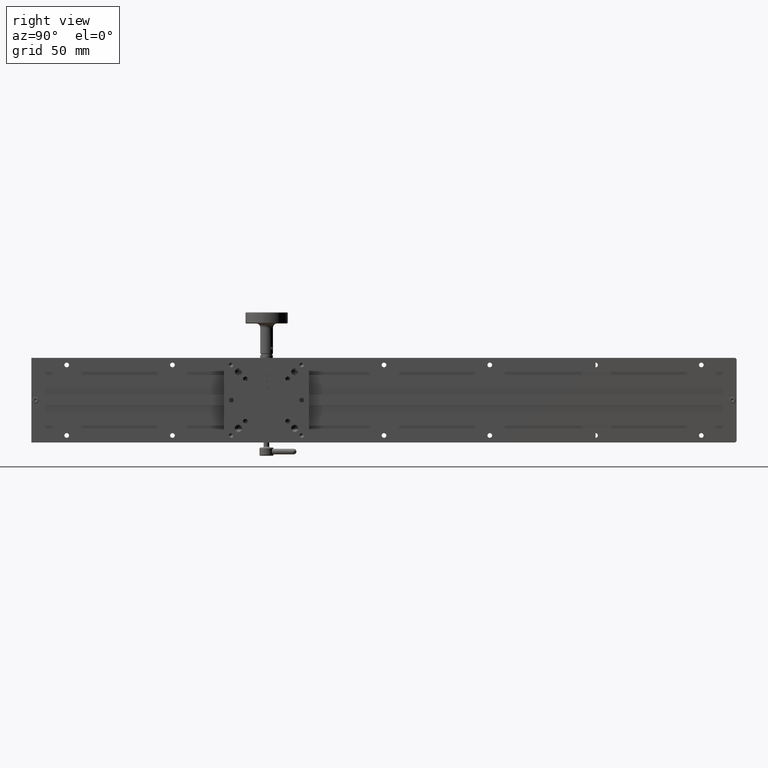
[diagram: clean part render]
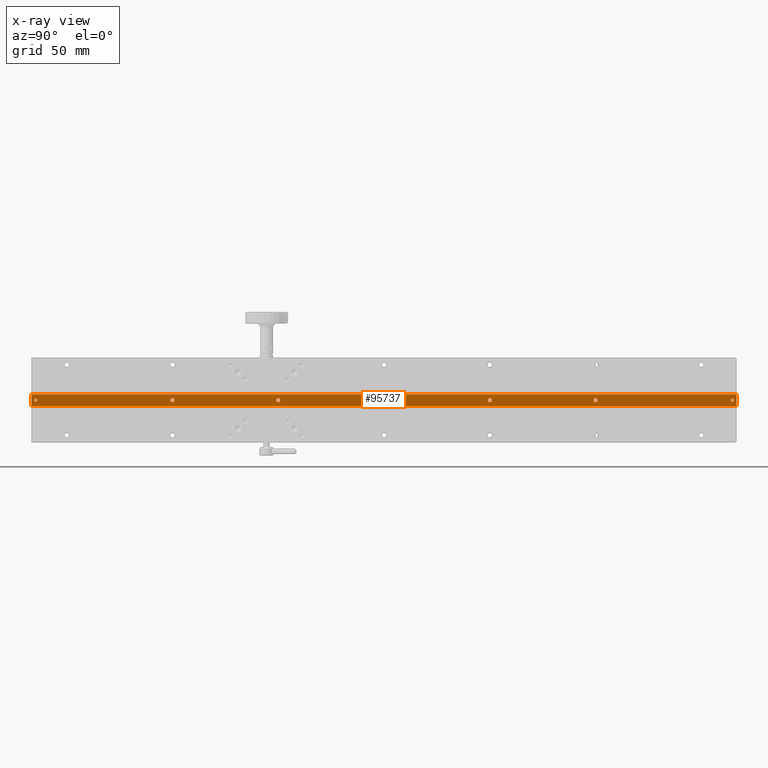
[diagram: x-ray — body ghosted, one internal face saturated and labeled with its STEP entity id]
A machine part, right view, then the same camera in x-ray: the body is ghosted and one INTERNAL B-rep face — a face not visible from any outside direction — is saturated and labeled: STEP entity #95737.
In plain terms, the highlighted planar face has unit normal (-1, 0, 0).
Its self-contained STEP definition (entity closure, byte-faithful):
#155 = AXIS2_PLACEMENT_3D ( 'NONE', #59455, #100485, #24570 ) ;
#354 = CARTESIAN_POINT ( 'NONE',  ( 41.90000000000107860, 504.9999999999997726, -29.99999999999732125 ) ) ;
#1534 = VERTEX_POINT ( 'NONE', #37464 ) ;
#3738 = FACE_BOUND ( 'NONE', #44040, .T. ) ;
#5804 = DIRECTION ( 'NONE',  ( -1.000000000000000000, 1.443289932012392100E-15, 4.635250982436261413E-14 ) ) ;
#5843 = VECTOR ( 'NONE', #43988, 1000.000000000000000 ) ;
#6802 = EDGE_CURVE ( 'NONE', #64511, #34632, #65195, .T. ) ;
#9173 = VERTEX_POINT ( 'NONE', #53796 ) ;
#9233 = CIRCLE ( 'NONE', #71164, 1.449999999999996403 ) ;
#10036 = CARTESIAN_POINT ( 'NONE',  ( 41.90000000000035385, 10.99999999999977085, -30.00000000000036948 ) ) ;
#10386 = CIRCLE ( 'NONE', #42255, 1.449999999999999956 ) ;
#11662 = LINE ( 'NONE', #63726, #20053 ) ;
#12152 = VECTOR ( 'NONE', #107710, 1000.000000000000000 ) ;
#12189 = CARTESIAN_POINT ( 'NONE',  ( 41.90000000000035385, 12.02499999999976055, -30.00000000000035172 ) ) ;
#12278 = DIRECTION ( 'NONE',  ( 1.000000000000000000, -1.443289932012660312E-15, -2.877341228894477022E-15 ) ) ;
#12738 = CARTESIAN_POINT ( 'NONE',  ( 41.90000000000016200, 7.999999999999795719, -34.04999999999995453 ) ) ;
#12833 = EDGE_LOOP ( 'NONE', ( #62561, #108349 ) ) ;
#14101 = FACE_OUTER_BOUND ( 'NONE', #20004, .T. ) ;
#14647 = FACE_BOUND ( 'NONE', #12833, .T. ) ;
#14709 = CARTESIAN_POINT ( 'NONE',  ( 41.90000000000087965, 507.9999999999997726, -34.04999999999687788 ) ) ;
#15060 = ORIENTED_EDGE ( 'NONE', *, *, #50604, .F. ) ;
#15375 = VERTEX_POINT ( 'NONE', #98441 ) ;
#16184 = AXIS2_PLACEMENT_3D ( 'NONE', #33757, #35389, #83637 ) ;
#17231 = CARTESIAN_POINT ( 'NONE',  ( 41.90000000000071623, 257.9999999999997726, -29.99999999999841549 ) ) ;
#18506 = CARTESIAN_POINT ( 'NONE',  ( 41.90000000000087965, 507.9999999999997726, -34.04999999999687788 ) ) ;
#18827 = EDGE_CURVE ( 'NONE', #98763, #43216, #44242, .T. ) ;
#20004 = EDGE_LOOP ( 'NONE', ( #70634, #22172, #15060, #33777 ) ) ;
#20053 = VECTOR ( 'NONE', #97526, 1000.000000000000000 ) ;
#20371 = DIRECTION ( 'NONE',  ( 1.000000000000000000, -1.443289932012660312E-15, -2.877341228894477022E-15 ) ) ;
#20869 = CIRCLE ( 'NONE', #47386, 1.449999999999999956 ) ;
#21125 = CARTESIAN_POINT ( 'NONE',  ( 41.90000000000035385, 9.974999999999781153, -30.00000000000037659 ) ) ;
#22172 = ORIENTED_EDGE ( 'NONE', *, *, #109075, .F. ) ;
#22672 = CARTESIAN_POINT ( 'NONE',  ( 41.90000000000081570, 331.5499999999997840, -29.99999999999795364 ) ) ;
#23143 = AXIS2_PLACEMENT_3D ( 'NONE', #82244, #5804, #96276 ) ;
#24344 = DIRECTION ( 'NONE',  ( 4.785444071660157589E-14, 0.000000000000000000, 1.000000000000000000 ) ) ;
#24570 = DIRECTION ( 'NONE',  ( 4.785444071660169580E-14, 0.000000000000000000, 1.000000000000000000 ) ) ;
#24735 = DIRECTION ( 'NONE',  ( 0.000000000000000000, -1.000000000000000000, -6.769652589178162533E-15 ) ) ;
#25295 = CARTESIAN_POINT ( 'NONE',  ( 41.90000000000060254, 182.9999999999997442, -29.99999999999887734 ) ) ;
#25568 = DIRECTION ( 'NONE',  ( 0.000000000000000000, -1.000000000000000000, -6.769652589177853299E-15 ) ) ;
#25818 = CARTESIAN_POINT ( 'NONE',  ( 41.90000000000081570, 332.9999999999997726, -29.99999999999795364 ) ) ;
#27366 = EDGE_CURVE ( 'NONE', #38146, #102125, #71013, .T. ) ;
#28051 = ORIENTED_EDGE ( 'NONE', *, *, #71331, .T. ) ;
#28670 = FACE_BOUND ( 'NONE', #105327, .T. ) ;
#29002 = CIRCLE ( 'NONE', #87380, 1.449999999999999956 ) ;
#29997 = VERTEX_POINT ( 'NONE', #102592 ) ;
#31280 = VECTOR ( 'NONE', #48502, 1000.000000000000000 ) ;
#31578 = AXIS2_PLACEMENT_3D ( 'NONE', #96303, #20371, #24735 ) ;
#33757 = CARTESIAN_POINT ( 'NONE',  ( 41.90000000000048885, 107.9999999999997726, -29.99999999999933920 ) ) ;
#33777 = ORIENTED_EDGE ( 'NONE', *, *, #58165, .T. ) ;
#34407 = DIRECTION ( 'NONE',  ( -1.000000000000000000, 1.443289932012392100E-15, 4.635250982436261413E-14 ) ) ;
#34632 = VERTEX_POINT ( 'NONE', #60938 ) ;
#35389 = DIRECTION ( 'NONE',  ( -1.000000000000000000, 1.443289932012392100E-15, 4.635250982436261413E-14 ) ) ;
#36989 = FACE_BOUND ( 'NONE', #43548, .T. ) ;
#37464 = CARTESIAN_POINT ( 'NONE',  ( 41.90000000000092939, 406.5499999999997272, -29.99999999999749178 ) ) ;
#37916 = EDGE_CURVE ( 'NONE', #56572, #67082, #70655, .T. ) ;
#38146 = VERTEX_POINT ( 'NONE', #59353 ) ;
#40106 = LINE ( 'NONE', #73908, #12152 ) ;
#40799 = ORIENTED_EDGE ( 'NONE', *, *, #89682, .T. ) ;
#40862 = AXIS2_PLACEMENT_3D ( 'NONE', #104822, #12278, #46075 ) ;
#41061 = ORIENTED_EDGE ( 'NONE', *, *, #43545, .T. ) ;
#41161 = EDGE_CURVE ( 'NONE', #102125, #38146, #10386, .T. ) ;
#42255 = AXIS2_PLACEMENT_3D ( 'NONE', #81037, #79947, #69992 ) ;
#42330 = AXIS2_PLACEMENT_3D ( 'NONE', #10036, #75447, #25568 ) ;
#43216 = VERTEX_POINT ( 'NONE', #91797 ) ;
#43303 = CARTESIAN_POINT ( 'NONE',  ( 41.90000000000060254, 184.4499999999997613, -29.99999999999885603 ) ) ;
#43539 = CARTESIAN_POINT ( 'NONE',  ( 41.90000000000087965, 507.9999999999997726, -34.04999999999687788 ) ) ;
#43545 = EDGE_CURVE ( 'NONE', #56436, #75791, #84400, .T. ) ;
#43548 = EDGE_LOOP ( 'NONE', ( #99129, #41061 ) ) ;
#43988 = DIRECTION ( 'NONE',  ( -1.443289932012703503E-15, -1.000000000000000000, -6.171113181712962177E-15 ) ) ;
#44040 = EDGE_LOOP ( 'NONE', ( #60477, #46625 ) ) ;
#44242 = CIRCLE ( 'NONE', #83168, 1.449999999999999956 ) ;
#44432 = CIRCLE ( 'NONE', #72760, 1.449999999999999956 ) ;
#46075 = DIRECTION ( 'NONE',  ( 0.000000000000000000, -1.000000000000000000, -6.769652589177853299E-15 ) ) ;
#46489 = EDGE_LOOP ( 'NONE', ( #97335, #28051 ) ) ;
#46625 = ORIENTED_EDGE ( 'NONE', *, *, #6802, .F. ) ;
#47386 = AXIS2_PLACEMENT_3D ( 'NONE', #92891, #51313, #75168 ) ;
#47450 = CARTESIAN_POINT ( 'NONE',  ( 41.90000000000092939, 407.9999999999997726, -29.99999999999749178 ) ) ;
#48502 = DIRECTION ( 'NONE',  ( -4.635250982436260782E-14, 6.171113181713031597E-15, -1.000000000000000000 ) ) ;
#50604 = EDGE_CURVE ( 'NONE', #29997, #72155, #90620, .T. ) ;
#51027 = CIRCLE ( 'NONE', #104096, 1.024999999999942624 ) ;
#51313 = DIRECTION ( 'NONE',  ( -1.000000000000000000, 1.443289932012392100E-15, 4.635250982436261413E-14 ) ) ;
#53796 = CARTESIAN_POINT ( 'NONE',  ( 41.90000000000092939, 409.4499999999997613, -29.99999999999747047 ) ) ;
#54286 = CARTESIAN_POINT ( 'NONE',  ( 41.90000000000060254, 181.5499999999997272, -29.99999999999887734 ) ) ;
#56436 = VERTEX_POINT ( 'NONE', #54286 ) ;
#56572 = VERTEX_POINT ( 'NONE', #12189 ) ;
#56854 = VERTEX_POINT ( 'NONE', #12738 ) ;
#58132 = CARTESIAN_POINT ( 'NONE',  ( 41.90000000000081570, 332.9999999999997726, -29.99999999999795364 ) ) ;
#58165 = EDGE_CURVE ( 'NONE', #29997, #79921, #40106, .T. ) ;
#59353 = CARTESIAN_POINT ( 'NONE',  ( 41.90000000000048885, 109.4499999999997755, -29.99999999999931788 ) ) ;
#59455 = CARTESIAN_POINT ( 'NONE',  ( 41.90000000000060254, 182.9999999999997442, -29.99999999999887734 ) ) ;
#60317 = CIRCLE ( 'NONE', #155, 1.449999999999996403 ) ;
#60477 = ORIENTED_EDGE ( 'NONE', *, *, #71800, .F. ) ;
#60550 = EDGE_CURVE ( 'NONE', #79921, #56854, #11662, .T. ) ;
#60938 = CARTESIAN_POINT ( 'NONE',  ( 41.90000000000107860, 503.9749999999998522, -29.99999999999732836 ) ) ;
#61152 = LINE ( 'NONE', #18506, #5843 ) ;
#62561 = ORIENTED_EDGE ( 'NONE', *, *, #107542, .T. ) ;
#63726 = CARTESIAN_POINT ( 'NONE',  ( 41.90000000000016200, 7.999999999999795719, -34.04999999999995453 ) ) ;
#64511 = VERTEX_POINT ( 'NONE', #66754 ) ;
#65195 = CIRCLE ( 'NONE', #31578, 1.024999999999942624 ) ;
#65596 = FACE_BOUND ( 'NONE', #109190, .T. ) ;
#65762 = DIRECTION ( 'NONE',  ( -1.000000000000000000, 1.443289932012392100E-15, 4.635250982436261413E-14 ) ) ;
#66191 = CARTESIAN_POINT ( 'NONE',  ( 41.90000000000071623, 256.5499999999997840, -29.99999999999841194 ) ) ;
#66754 = CARTESIAN_POINT ( 'NONE',  ( 41.90000000000107860, 506.0249999999997499, -29.99999999999730349 ) ) ;
#67082 = VERTEX_POINT ( 'NONE', #21125 ) ;
#67379 = DIRECTION ( 'NONE',  ( 4.785444071660157589E-14, 0.000000000000000000, 1.000000000000000000 ) ) ;
#67591 = CIRCLE ( 'NONE', #92358, 1.449999999999996403 ) ;
#67936 = DIRECTION ( 'NONE',  ( 1.000000000000000000, -1.443289932012660312E-15, -2.877341228894477022E-15 ) ) ;
#69992 = DIRECTION ( 'NONE',  ( 4.785444071660157589E-14, -9.570888143320315493E-15, 1.000000000000000000 ) ) ;
#70634 = ORIENTED_EDGE ( 'NONE', *, *, #60550, .T. ) ;
#70655 = CIRCLE ( 'NONE', #42330, 1.024999999999989475 ) ;
#71013 = CIRCLE ( 'NONE', #16184, 1.449999999999999956 ) ;
#71164 = AXIS2_PLACEMENT_3D ( 'NONE', #77845, #96651, #103323 ) ;
#71331 = EDGE_CURVE ( 'NONE', #77774, #15375, #20869, .T. ) ;
#71800 = EDGE_CURVE ( 'NONE', #34632, #64511, #51027, .T. ) ;
#72155 = VERTEX_POINT ( 'NONE', #43539 ) ;
#72760 = AXIS2_PLACEMENT_3D ( 'NONE', #17231, #34407, #102004 ) ;
#73908 = CARTESIAN_POINT ( 'NONE',  ( 41.90000000000126334, 507.9999999999997726, -25.94999999999687645 ) ) ;
#73943 = CARTESIAN_POINT ( 'NONE',  ( 41.90000000000048885, 106.5499999999997840, -29.99999999999933920 ) ) ;
#75168 = DIRECTION ( 'NONE',  ( 4.785444071660157589E-14, 0.000000000000000000, 1.000000000000000000 ) ) ;
#75447 = DIRECTION ( 'NONE',  ( 1.000000000000000000, -1.443289932012660312E-15, -2.877341228894477022E-15 ) ) ;
#75791 = VERTEX_POINT ( 'NONE', #43303 ) ;
#76171 = CARTESIAN_POINT ( 'NONE',  ( 41.90000000000053859, 7.999999999999745093, -25.94999999999996021 ) ) ;
#77774 = VERTEX_POINT ( 'NONE', #66191 ) ;
#77845 = CARTESIAN_POINT ( 'NONE',  ( 41.90000000000092939, 407.9999999999997726, -29.99999999999749178 ) ) ;
#79921 = VERTEX_POINT ( 'NONE', #76171 ) ;
#79947 = DIRECTION ( 'NONE',  ( -1.000000000000000000, 1.443289932012392100E-15, 4.635250982436261413E-14 ) ) ;
#81037 = CARTESIAN_POINT ( 'NONE',  ( 41.90000000000048885, 107.9999999999997726, -29.99999999999933920 ) ) ;
#81704 = PLANE ( 'NONE',  #23143 ) ;
#82244 = CARTESIAN_POINT ( 'NONE',  ( 41.90000000000087965, 507.9999999999997726, -34.04999999999687788 ) ) ;
#82775 = FACE_BOUND ( 'NONE', #102803, .T. ) ;
#83168 = AXIS2_PLACEMENT_3D ( 'NONE', #25818, #93423, #67379 ) ;
#83637 = DIRECTION ( 'NONE',  ( 4.785444071660157589E-14, -9.570888143320315493E-15, 1.000000000000000000 ) ) ;
#84400 = CIRCLE ( 'NONE', #105672, 1.449999999999996403 ) ;
#84803 = ORIENTED_EDGE ( 'NONE', *, *, #41161, .T. ) ;
#85093 = CIRCLE ( 'NONE', #40862, 1.024999999999989475 ) ;
#85595 = EDGE_CURVE ( 'NONE', #67082, #56572, #85093, .T. ) ;
#85928 = ORIENTED_EDGE ( 'NONE', *, *, #37916, .F. ) ;
#87380 = AXIS2_PLACEMENT_3D ( 'NONE', #58132, #109133, #24344 ) ;
#88728 = EDGE_CURVE ( 'NONE', #9173, #1534, #67591, .T. ) ;
#89682 = EDGE_CURVE ( 'NONE', #1534, #9173, #9233, .T. ) ;
#90558 = FACE_BOUND ( 'NONE', #46489, .T. ) ;
#90620 = LINE ( 'NONE', #14709, #31280 ) ;
#91797 = CARTESIAN_POINT ( 'NONE',  ( 41.90000000000081570, 334.4499999999998181, -29.99999999999793232 ) ) ;
#92358 = AXIS2_PLACEMENT_3D ( 'NONE', #47450, #105636, #97333 ) ;
#92891 = CARTESIAN_POINT ( 'NONE',  ( 41.90000000000071623, 257.9999999999997726, -29.99999999999841549 ) ) ;
#92903 = DIRECTION ( 'NONE',  ( 4.785444071660169580E-14, 0.000000000000000000, 1.000000000000000000 ) ) ;
#93423 = DIRECTION ( 'NONE',  ( -1.000000000000000000, 1.443289932012392100E-15, 4.635250982436261413E-14 ) ) ;
#94515 = ORIENTED_EDGE ( 'NONE', *, *, #85595, .F. ) ;
#95737 = ADVANCED_FACE ( 'NONE', ( #90558, #14647, #65596, #36989, #82775, #28670, #3738, #14101 ), #81704, .F. ) ;
#96276 = DIRECTION ( 'NONE',  ( 4.635250982436260782E-14, -6.171113181713031597E-15, 1.000000000000000000 ) ) ;
#96280 = EDGE_CURVE ( 'NONE', #75791, #56436, #60317, .T. ) ;
#96303 = CARTESIAN_POINT ( 'NONE',  ( 41.90000000000107860, 504.9999999999997726, -29.99999999999732125 ) ) ;
#96651 = DIRECTION ( 'NONE',  ( -1.000000000000000000, 1.443289932012392100E-15, 4.635250982436261413E-14 ) ) ;
#97047 = ORIENTED_EDGE ( 'NONE', *, *, #88728, .T. ) ;
#97333 = DIRECTION ( 'NONE',  ( 4.785444071660169580E-14, 0.000000000000000000, 1.000000000000000000 ) ) ;
#97335 = ORIENTED_EDGE ( 'NONE', *, *, #97740, .T. ) ;
#97526 = DIRECTION ( 'NONE',  ( -4.635250982436260782E-14, 6.171113181713031597E-15, -1.000000000000000000 ) ) ;
#97740 = EDGE_CURVE ( 'NONE', #15375, #77774, #44432, .T. ) ;
#98441 = CARTESIAN_POINT ( 'NONE',  ( 41.90000000000071623, 259.4499999999998181, -29.99999999999839417 ) ) ;
#98763 = VERTEX_POINT ( 'NONE', #22672 ) ;
#99129 = ORIENTED_EDGE ( 'NONE', *, *, #96280, .T. ) ;
#100485 = DIRECTION ( 'NONE',  ( -1.000000000000000000, 1.443289932012392100E-15, 4.635250982436261413E-14 ) ) ;
#101748 = DIRECTION ( 'NONE',  ( 0.000000000000000000, -1.000000000000000000, -6.769652589178162533E-15 ) ) ;
#102004 = DIRECTION ( 'NONE',  ( 4.785444071660157589E-14, 0.000000000000000000, 1.000000000000000000 ) ) ;
#102125 = VERTEX_POINT ( 'NONE', #73943 ) ;
#102592 = CARTESIAN_POINT ( 'NONE',  ( 41.90000000000126334, 507.9999999999997726, -25.94999999999687645 ) ) ;
#102803 = EDGE_LOOP ( 'NONE', ( #103350, #84803 ) ) ;
#103323 = DIRECTION ( 'NONE',  ( 4.785444071660169580E-14, 0.000000000000000000, 1.000000000000000000 ) ) ;
#103350 = ORIENTED_EDGE ( 'NONE', *, *, #27366, .T. ) ;
#104096 = AXIS2_PLACEMENT_3D ( 'NONE', #354, #67936, #101748 ) ;
#104822 = CARTESIAN_POINT ( 'NONE',  ( 41.90000000000035385, 10.99999999999977085, -30.00000000000036948 ) ) ;
#105327 = EDGE_LOOP ( 'NONE', ( #94515, #85928 ) ) ;
#105636 = DIRECTION ( 'NONE',  ( -1.000000000000000000, 1.443289932012392100E-15, 4.635250982436261413E-14 ) ) ;
#105672 = AXIS2_PLACEMENT_3D ( 'NONE', #25295, #65762, #92903 ) ;
#107542 = EDGE_CURVE ( 'NONE', #43216, #98763, #29002, .T. ) ;
#107710 = DIRECTION ( 'NONE',  ( -1.443289932012703503E-15, -1.000000000000000000, -6.171113181712962177E-15 ) ) ;
#108349 = ORIENTED_EDGE ( 'NONE', *, *, #18827, .T. ) ;
#109075 = EDGE_CURVE ( 'NONE', #72155, #56854, #61152, .T. ) ;
#109133 = DIRECTION ( 'NONE',  ( -1.000000000000000000, 1.443289932012392100E-15, 4.635250982436261413E-14 ) ) ;
#109190 = EDGE_LOOP ( 'NONE', ( #97047, #40799 ) ) ;